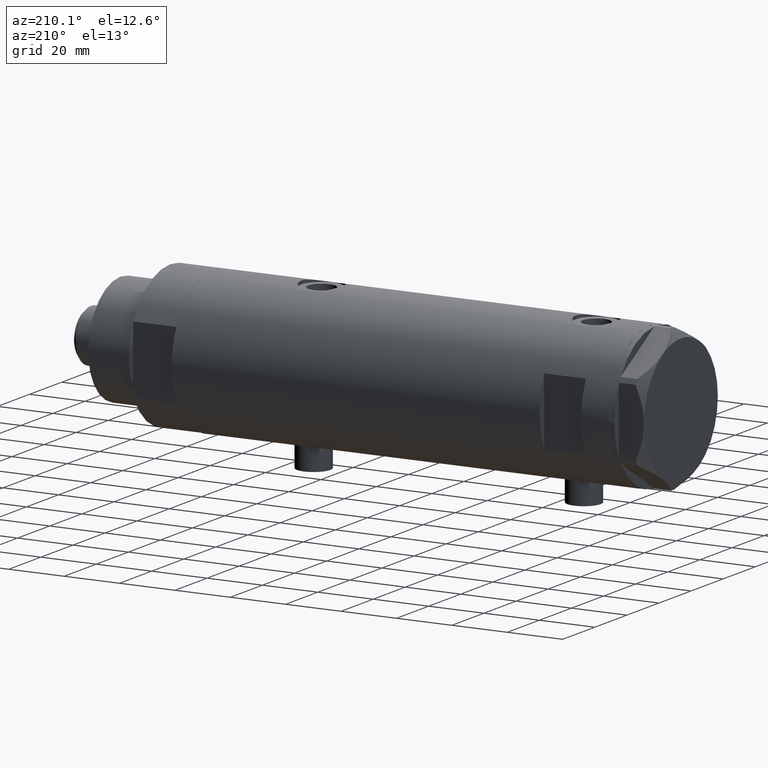
[diagram: clean part render]
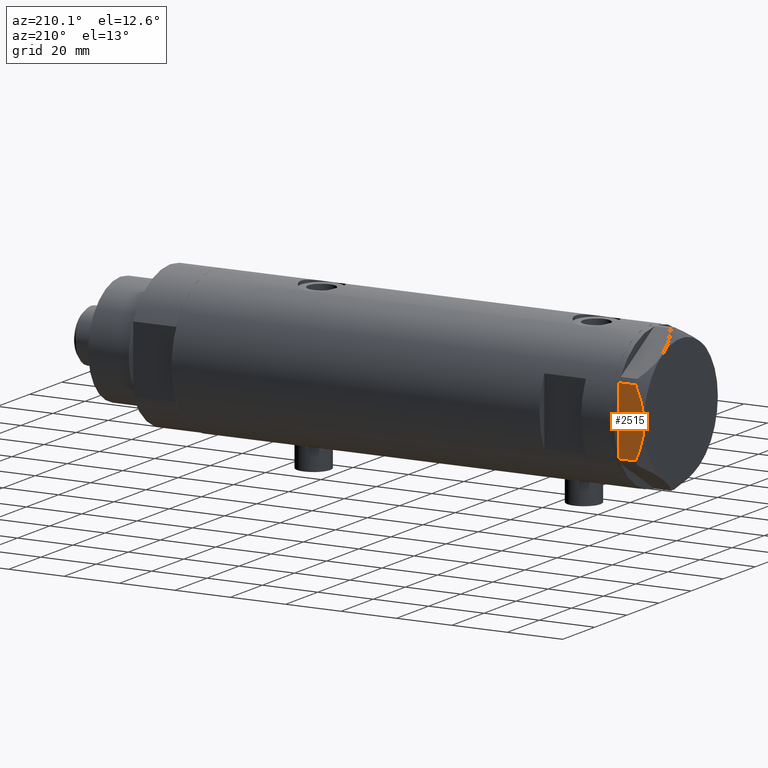
[diagram: same view with one face highlighted and labeled with its STEP entity id]
A machine part, auxiliary view. The second image highlights one B-rep face of the part: STEP entity #2515.
In plain terms, the highlighted planar face has unit normal (0, -1, 0).
Its self-contained STEP definition (entity closure, byte-faithful):
#36 = ORIENTED_EDGE ( 'NONE', *, *, #4608, .T. ) ;
#88 = CARTESIAN_POINT ( 'NONE',  ( 23.00000000000004263, -8.748091966971204059, 7.396818978284578350 ) ) ;
#99 = ORIENTED_EDGE ( 'NONE', *, *, #4845, .T. ) ;
#130 = ORIENTED_EDGE ( 'NONE', *, *, #1591, .T. ) ;
#152 = DIRECTION ( 'NONE',  ( -1.032024811306395780E-14, 1.000000000000000000, 0.000000000000000000 ) ) ;
#172 = EDGE_CURVE ( 'NONE', #4262, #1359, #983, .T. ) ;
#177 = DIRECTION ( 'NONE',  ( -1.032024811306395780E-14, 1.000000000000000000, 0.000000000000000000 ) ) ;
#357 = FACE_OUTER_BOUND ( 'NONE', #3246, .T. ) ;
#412 = CARTESIAN_POINT ( 'NONE',  ( 23.00000000000008527, -13.27905619136115867, 9.000000000000000000 ) ) ;
#477 = ORIENTED_EDGE ( 'NONE', *, *, #2972, .T. ) ;
#570 = ORIENTED_EDGE ( 'NONE', *, *, #172, .T. ) ;
#789 = CARTESIAN_POINT ( 'NONE',  ( 23.00000000000007461, -12.15905619136115590, 0.000000000000000000 ) ) ;
#836 = VERTEX_POINT ( 'NONE', #789 ) ;
#851 = CARTESIAN_POINT ( 'NONE',  ( 23.00000000000002132, -6.734330413511252722, 8.039389741252669808 ) ) ;
#983 = LINE ( 'NONE', #3991, #1746 ) ;
#1019 = CARTESIAN_POINT ( 'NONE',  ( 23.00000000000007461, -12.15905619136115590, 9.000000000000000000 ) ) ;
#1091 = CARTESIAN_POINT ( 'NONE',  ( 22.99999999999994671, 0.5295934231899334099, 9.000000000000095923 ) ) ;
#1171 = CARTESIAN_POINT ( 'NONE',  ( 22.99999999999982947, 11.68282849742352525, 6.206372352695418648 ) ) ;
#1282 = VECTOR ( 'NONE', #152, 1000.000000000000000 ) ;
#1359 = VERTEX_POINT ( 'NONE', #2985 ) ;
#1527 = CARTESIAN_POINT ( 'NONE',  ( 22.99999999999995026, 2.373657066004705010E-13, 9.000000000000000000 ) ) ;
#1552 = CARTESIAN_POINT ( 'NONE',  ( 23.00000000000003197, -8.246028007352183664, 7.571131808646910599 ) ) ;
#1569 = LINE ( 'NONE', #2420, #4196 ) ;
#1583 = VECTOR ( 'NONE', #4034, 1000.000000000000000 ) ;
#1591 = EDGE_CURVE ( 'NONE', #3451, #836, #2897, .T. ) ;
#1746 = VECTOR ( 'NONE', #1765, 1000.000000000000000 ) ;
#1765 = DIRECTION ( 'NONE',  ( 0.000000000000000000, 0.000000000000000000, 1.000000000000000000 ) ) ;
#1881 = DIRECTION ( 'NONE',  ( 1.032024811306395780E-14, -1.000000000000000000, 0.000000000000000000 ) ) ;
#1933 = CARTESIAN_POINT ( 'NONE',  ( 22.99999999999990052, 5.228918809624284236, 8.433337033849852560 ) ) ;
#2148 = AXIS2_PLACEMENT_3D ( 'NONE', #412, #3847, #1881 ) ;
#2215 = CARTESIAN_POINT ( 'NONE',  ( 22.99999999999982236, 12.15905619136164262, 5.983800287807618190 ) ) ;
#2238 = CARTESIAN_POINT ( 'NONE',  ( 22.99999999999992184, 2.643615312305318099, 8.854304560636265364 ) ) ;
#2269 = CARTESIAN_POINT ( 'NONE',  ( 22.99999999999982236, 12.15905619136163729, 0.000000000000000000 ) ) ;
#2271 = CARTESIAN_POINT ( 'NONE',  ( 23.00000000000007461, -12.15905619136115412, 5.983800287807623519 ) ) ;
#2337 = VERTEX_POINT ( 'NONE', #3714 ) ;
#2420 = CARTESIAN_POINT ( 'NONE',  ( 23.00000000000008527, -13.27905619136115867, 0.000000000000000000 ) ) ;
#2475 = CARTESIAN_POINT ( 'NONE',  ( 23.00000000000007461, -12.12435565298200224, 0.000000000000000000 ) ) ;
#2515 = ADVANCED_FACE ( 'NONE', ( #357 ), #2667, .F. ) ;
#2661 = CARTESIAN_POINT ( 'NONE',  ( 22.99999999999987921, 7.253003311474552461, 7.903276810347635184 ) ) ;
#2667 = PLANE ( 'NONE',  #2148 ) ;
#2683 = CARTESIAN_POINT ( 'NONE',  ( 22.99999999999993960, 1.063773509315896648, 8.981438083606837708 ) ) ;
#2754 = LINE ( 'NONE', #4249, #1282 ) ;
#2804 = B_SPLINE_CURVE_WITH_KNOTS ( 'NONE', 3,
 ( #4829, #1091, #2683, #3387, #2238, #3439, #1933, #2661, #4150, #3416, #3780, #3735, #1171, #2215 ),
 .UNSPECIFIED., .F., .F.,
 ( 4, 2, 2, 2, 2, 2, 4 ),
 ( 0.04777139595992689614, 0.04934380568070229067, 0.05091621540147768521, 0.05406103484302848122, 0.05720585428457927030, 0.05877826400535466483, 0.06035067372613005937 ),
 .UNSPECIFIED. ) ;
#2818 = EDGE_CURVE ( 'NONE', #2337, #1359, #2804, .T. ) ;
#2887 = LINE ( 'NONE', #4361, #4038 ) ;
#2897 = LINE ( 'NONE', #1019, #1583 ) ;
#2972 = EDGE_CURVE ( 'NONE', #3084, #4262, #2754, .T. ) ;
#2985 = CARTESIAN_POINT ( 'NONE',  ( 22.99999999999982236, 12.15905619136164262, 5.983800287807618190 ) ) ;
#3084 = VERTEX_POINT ( 'NONE', #3258 ) ;
#3246 = EDGE_LOOP ( 'NONE', ( #4285, #130, #36, #99, #477, #570, #3627 ) ) ;
#3258 = CARTESIAN_POINT ( 'NONE',  ( 22.99999999999982592, 12.12435565298247653, 0.000000000000000000 ) ) ;
#3387 = CARTESIAN_POINT ( 'NONE',  ( 22.99999999999992539, 2.119709279062085727, 8.908535212173203988 ) ) ;
#3393 = CARTESIAN_POINT ( 'NONE',  ( 23.00000000000002842, -7.239756182922028493, 7.892186063422852449 ) ) ;
#3416 = CARTESIAN_POINT ( 'NONE',  ( 22.99999999999985079, 9.734726261263462632, 7.028924700095659617 ) ) ;
#3439 = CARTESIAN_POINT ( 'NONE',  ( 22.99999999999990763, 4.203926054642127319, 8.641681223122510858 ) ) ;
#3451 = VERTEX_POINT ( 'NONE', #2271 ) ;
#3627 = ORIENTED_EDGE ( 'NONE', *, *, #2818, .F. ) ;
#3714 = CARTESIAN_POINT ( 'NONE',  ( 22.99999999999995026, 2.373657066004705010E-13, 9.000000000000000000 ) ) ;
#3735 = CARTESIAN_POINT ( 'NONE',  ( 22.99999999999984368, 11.20155944044832630, 6.421102682632754188 ) ) ;
#3780 = CARTESIAN_POINT ( 'NONE',  ( 22.99999999999983658, 10.22738952213810926, 6.832470313674774864 ) ) ;
#3847 = DIRECTION ( 'NONE',  ( -1.000000000000000000, -1.032024811306395780E-14, 0.000000000000000000 ) ) ;
#3965 = B_SPLINE_CURVE_WITH_KNOTS ( 'NONE', 3,
 ( #4233, #4490, #4154, #88, #1552, #3393, #851, #4537, #4130, #1527 ),
 .UNSPECIFIED., .F., .F.,
 ( 4, 2, 2, 2, 4 ),
 ( 0.03516523594057417712, 0.03831677594541235687, 0.03989254594783144675, 0.04146831595025053663, 0.04777139595992689614 ),
 .UNSPECIFIED. ) ;
#3991 = CARTESIAN_POINT ( 'NONE',  ( 22.99999999999982236, 12.15905619136163729, 9.000000000000000000 ) ) ;
#4034 = DIRECTION ( 'NONE',  ( 0.000000000000000000, 0.000000000000000000, -1.000000000000000000 ) ) ;
#4038 = VECTOR ( 'NONE', #4339, 1000.000000000000000 ) ;
#4130 = CARTESIAN_POINT ( 'NONE',  ( 22.99999999999997513, -2.122900714017905699, 9.000000000000095923 ) ) ;
#4150 = CARTESIAN_POINT ( 'NONE',  ( 22.99999999999986500, 8.252113629125430450, 7.581642062680224115 ) ) ;
#4154 = CARTESIAN_POINT ( 'NONE',  ( 23.00000000000005684, -10.23890159976104641, 6.840812428290920622 ) ) ;
#4188 = VERTEX_POINT ( 'NONE', #2475 ) ;
#4196 = VECTOR ( 'NONE', #177, 1000.000000000000000 ) ;
#4233 = CARTESIAN_POINT ( 'NONE',  ( 23.00000000000007461, -12.15905619136115412, 5.983800287807623519 ) ) ;
#4249 = CARTESIAN_POINT ( 'NONE',  ( 23.00000000000008527, -13.27905619136115867, 0.000000000000000000 ) ) ;
#4258 = EDGE_CURVE ( 'NONE', #3451, #2337, #3965, .T. ) ;
#4262 = VERTEX_POINT ( 'NONE', #2269 ) ;
#4285 = ORIENTED_EDGE ( 'NONE', *, *, #4258, .F. ) ;
#4339 = DIRECTION ( 'NONE',  ( -1.032024811306395780E-14, 1.000000000000000000, 0.000000000000000000 ) ) ;
#4361 = CARTESIAN_POINT ( 'NONE',  ( 23.00000000000008527, -13.27905619136115867, 0.000000000000000000 ) ) ;
#4490 = CARTESIAN_POINT ( 'NONE',  ( 23.00000000000006395, -11.20825071633898240, 6.428173306378455187 ) ) ;
#4537 = CARTESIAN_POINT ( 'NONE',  ( 22.99999999999999289, -4.194757081058811288, 8.703000351525204792 ) ) ;
#4608 = EDGE_CURVE ( 'NONE', #836, #4188, #1569, .T. ) ;
#4829 = CARTESIAN_POINT ( 'NONE',  ( 22.99999999999995026, 2.373657066004705010E-13, 9.000000000000000000 ) ) ;
#4845 = EDGE_CURVE ( 'NONE', #4188, #3084, #2887, .T. ) ;